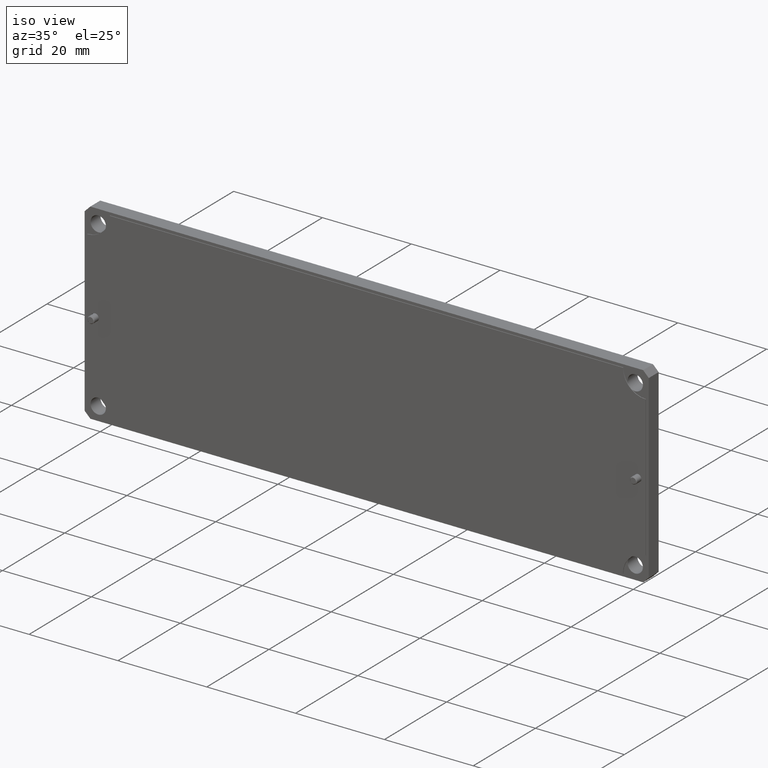
[diagram: clean part render]
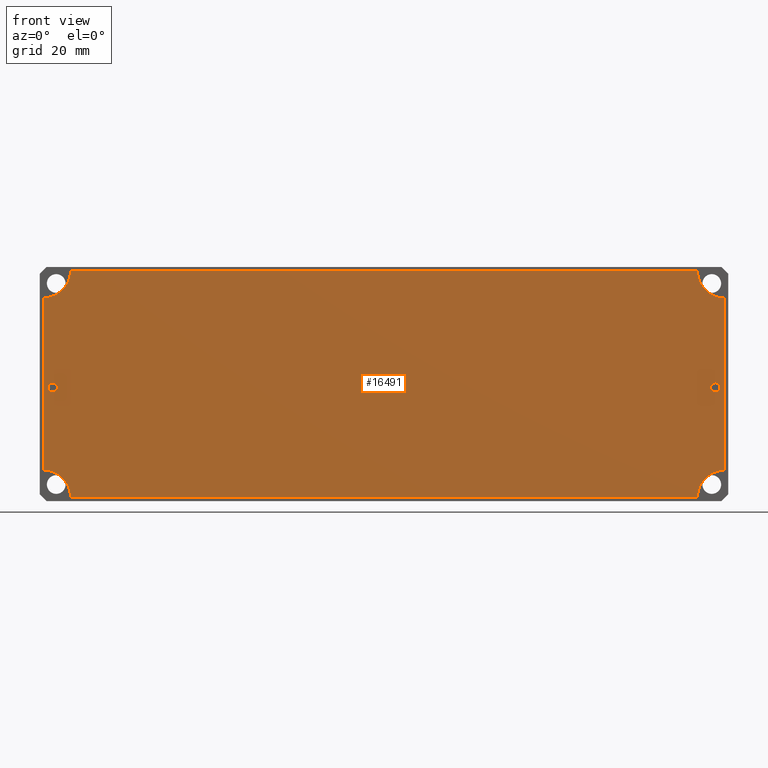
[diagram: tour spotlight — one face highlighted and labeled with its STEP entity id]
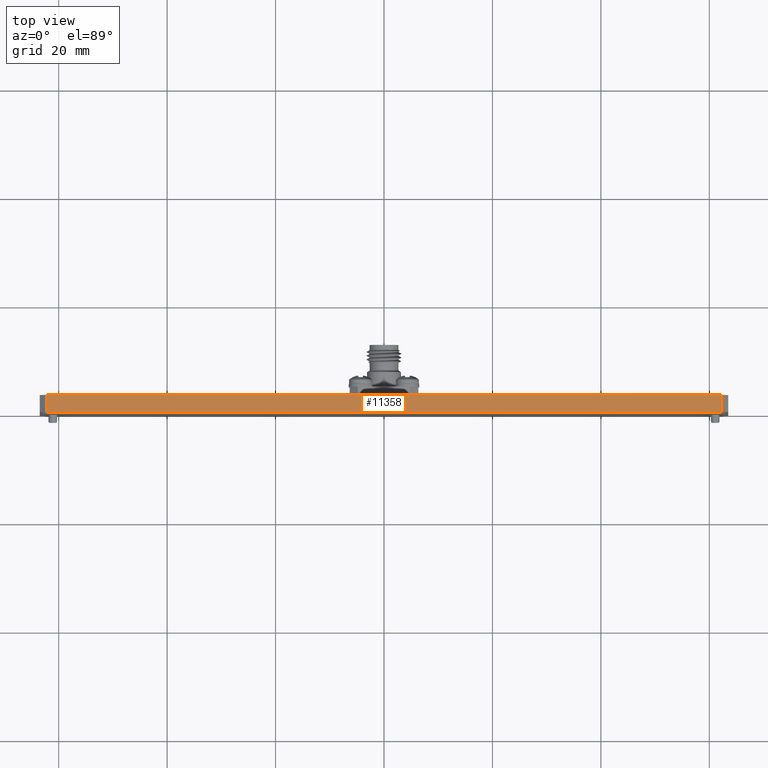
[diagram: tour spotlight — one face highlighted and labeled with its STEP entity id]
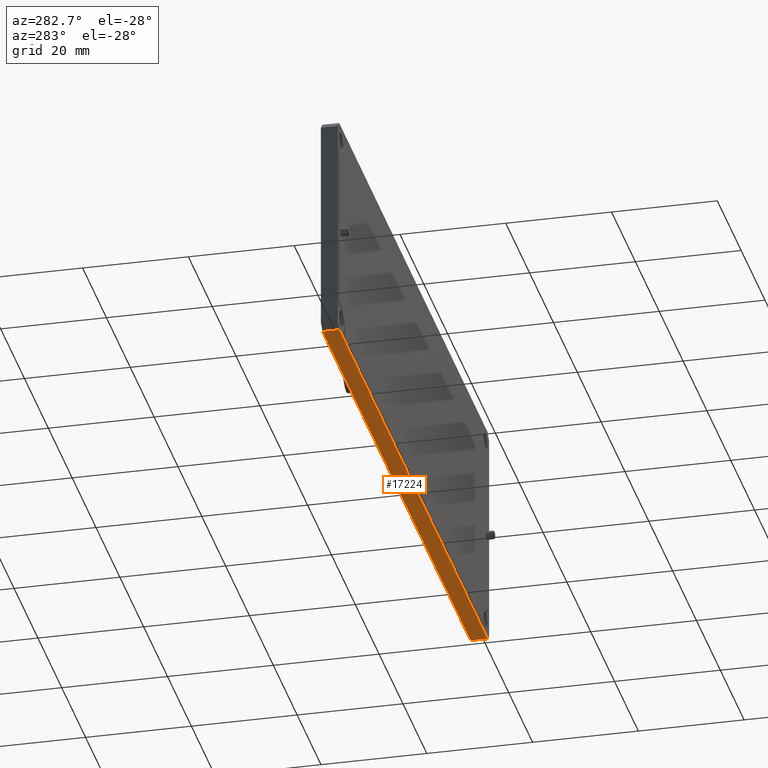
[diagram: tour spotlight — one face highlighted and labeled with its STEP entity id]
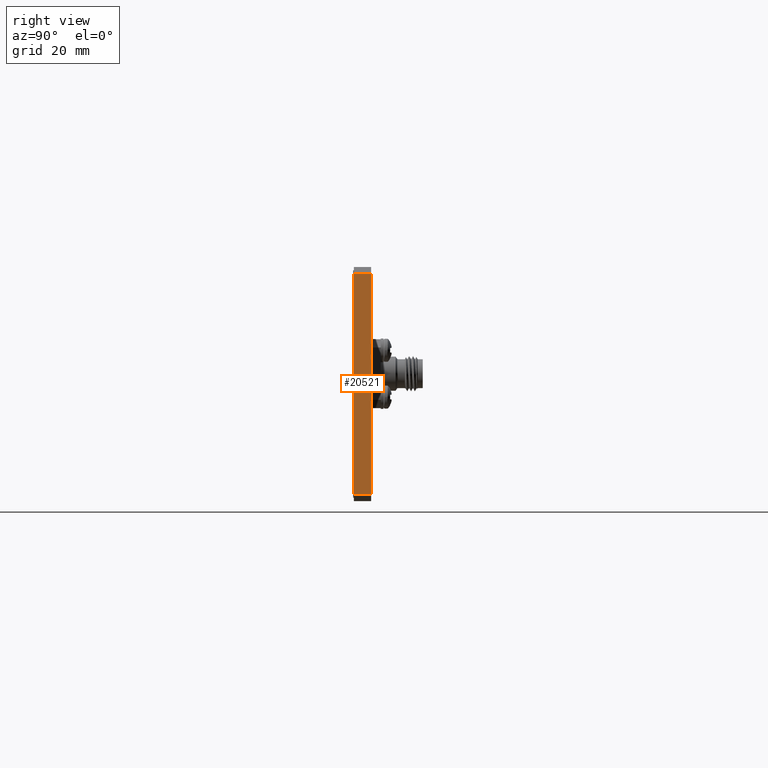
[diagram: tour spotlight — one face highlighted and labeled with its STEP entity id]
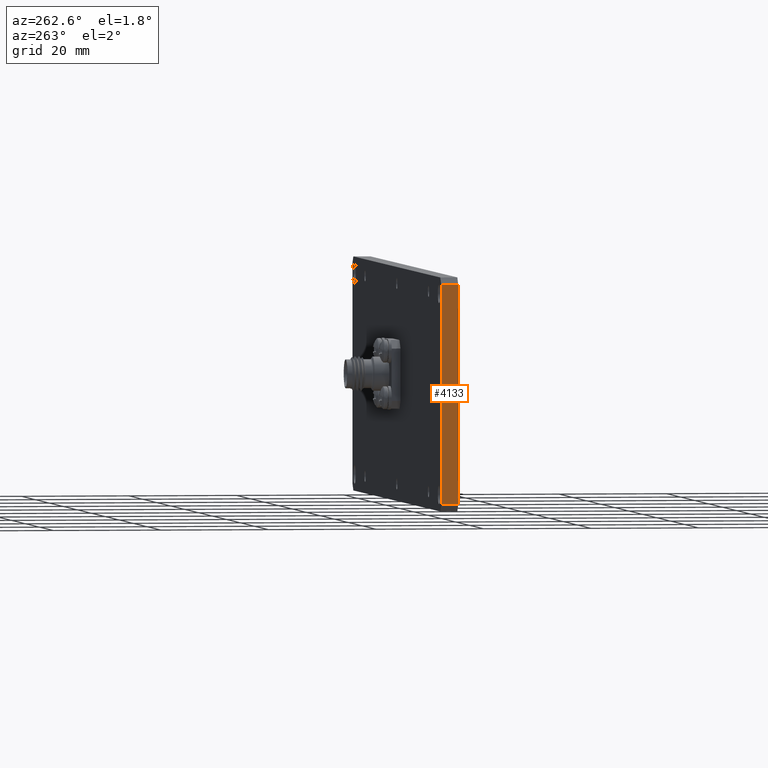
[diagram: tour spotlight — one face highlighted and labeled with its STEP entity id]
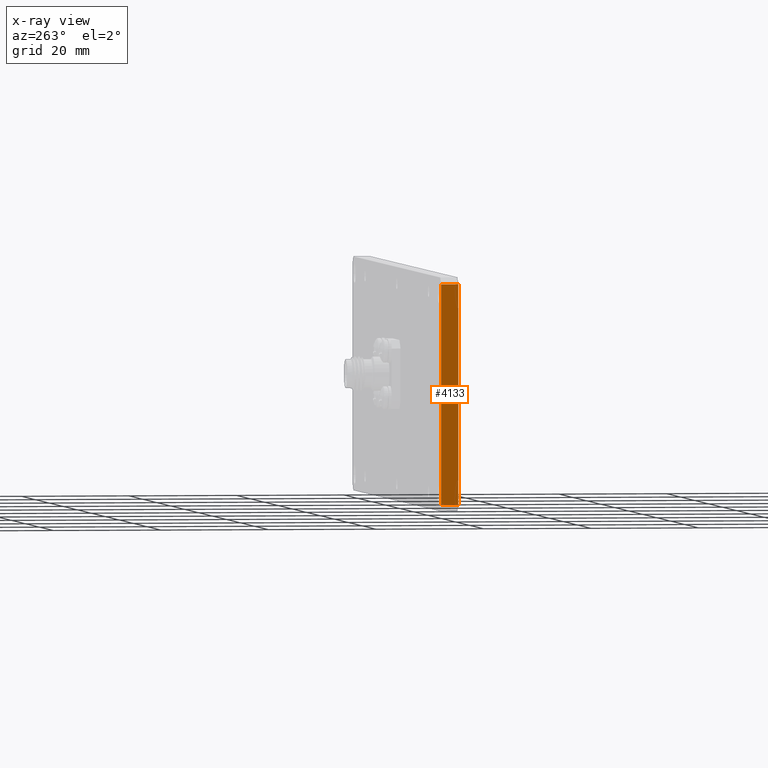
[diagram: x-ray of the same camera — body ghosted, this tour face saturated]
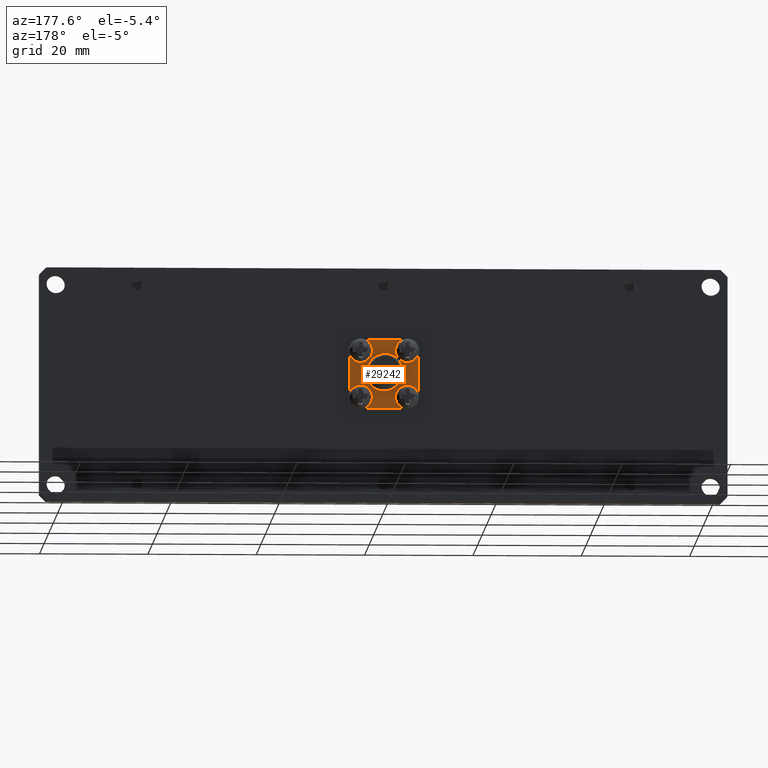
[diagram: tour spotlight — one face highlighted and labeled with its STEP entity id]
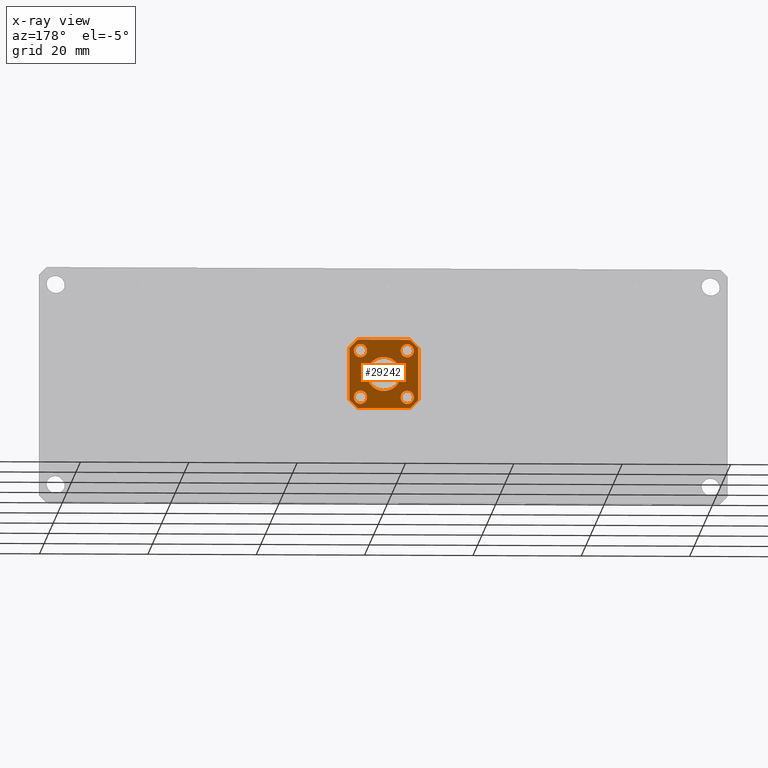
[diagram: x-ray of the same camera — body ghosted, this tour face saturated]
A machine part: a face-by-face anatomy tour. The part has 553 B-rep faces; the first image is the clean iso view, then the 6 largest visible faces are spotlighted one at a time (largest first), each with its STEP entity span.

Face 1 — front view, entity #16491. In plain terms, the highlighted planar face has unit normal (-0, -1, -0).
Definition (entity closure, byte-faithful):
#416 = DIRECTION ( 'NONE',  ( -5.551115123125781500E-017, 2.181494072981117600E-032, -1.000000000000000000 ) ) ;
#903 = CARTESIAN_POINT ( 'NONE',  ( -2.475000000000001900, -0.005000000000000000100, -0.8250000000000005100 ) ) ;
#950 = CARTESIAN_POINT ( 'NONE',  ( -2.275000000000000800, -0.005000000000000000100, 0.8250000000000010700 ) ) ;
#1314 = CARTESIAN_POINT ( 'NONE',  ( -2.475000000000001900, -0.005000000000000000100, 0.8250000000000001800 ) ) ;
#2229 = AXIS2_PLACEMENT_3D ( 'NONE', #12941, #7606, #30774 ) ;
#2478 = EDGE_CURVE ( 'NONE', #27634, #12762, #6495, .T. ) ;
#2840 = DIRECTION ( 'NONE',  ( 1.000000000000000000, -6.494532233333548000E-033, 5.486654548244976900E-017 ) ) ;
#3298 = VERTEX_POINT ( 'NONE', #18574 ) ;
#3766 = DIRECTION ( 'NONE',  ( -1.000000000000000000, 6.494532233333548000E-033, -5.486654548244976900E-017 ) ) ;
#4915 = DIRECTION ( 'NONE',  ( -6.494532233333543900E-033, -1.000000000000000000, -2.181494072981117600E-032 ) ) ;
#5185 = EDGE_CURVE ( 'NONE', #26575, #32260, #25729, .T. ) ;
#5250 = DIRECTION ( 'NONE',  ( 6.494532233333543900E-033, 1.000000000000000000, 2.181494072981117900E-032 ) ) ;
#5599 = VERTEX_POINT ( 'NONE', #10375 ) ;
#5677 = EDGE_CURVE ( 'NONE', #29269, #30675, #8181, .T. ) ;
#5780 = CARTESIAN_POINT ( 'NONE',  ( -2.475000000000001900, -0.005000000000000000100, 0.8250000000000001800 ) ) ;
#6017 = CARTESIAN_POINT ( 'NONE',  ( 2.474999999999999600, -0.005000000000000000100, 0.6250000000000004400 ) ) ;
#6044 = CARTESIAN_POINT ( 'NONE',  ( 2.474999999999999600, -0.005000000000000000100, -0.6250000000000006700 ) ) ;
#6338 = CARTESIAN_POINT ( 'NONE',  ( 2.405000000000000200, -0.005000000000000000100, -0.05849999999999958000 ) ) ;
#6410 = CIRCLE ( 'NONE', #17740, 0.1999999999999995100 ) ;
#6495 = LINE ( 'NONE', #29217, #28086 ) ;
#6673 = ORIENTED_EDGE ( 'NONE', *, *, #15263, .T. ) ;
#6912 = ORIENTED_EDGE ( 'NONE', *, *, #12157, .T. ) ;
#7174 = CARTESIAN_POINT ( 'NONE',  ( 2.405000000000000200, -0.005000000000000000100, -0.02499999999999959500 ) ) ;
#7551 = AXIS2_PLACEMENT_3D ( 'NONE', #903, #10907, #18788 ) ;
#7606 = DIRECTION ( 'NONE',  ( 6.494532233333543900E-033, 1.000000000000000000, 2.181494072981117900E-032 ) ) ;
#7611 = CARTESIAN_POINT ( 'NONE',  ( -2.405000000000000200, -0.005000000000000000100, 0.008500000000000635500 ) ) ;
#8060 = FACE_OUTER_BOUND ( 'NONE', #8143, .T. ) ;
#8143 = EDGE_LOOP ( 'NONE', ( #23303, #8920, #11649, #31302, #16087, #22947, #6912, #16821 ) ) ;
#8181 = LINE ( 'NONE', #5780, #12571 ) ;
#8234 = DIRECTION ( 'NONE',  ( 6.494532233333543900E-033, 1.000000000000000000, 2.181494072981117900E-032 ) ) ;
#8920 = ORIENTED_EDGE ( 'NONE', *, *, #2478, .T. ) ;
#8985 = AXIS2_PLACEMENT_3D ( 'NONE', #28720, #15688, #31062 ) ;
#9023 = AXIS2_PLACEMENT_3D ( 'NONE', #15094, #4915, #33231 ) ;
#9119 = DIRECTION ( 'NONE',  ( 5.551115123125781500E-017, -2.181494072981117600E-032, 1.000000000000000000 ) ) ;
#9720 = ORIENTED_EDGE ( 'NONE', *, *, #26864, .T. ) ;
#10039 = FACE_BOUND ( 'NONE', #30155, .T. ) ;
#10278 = CARTESIAN_POINT ( 'NONE',  ( 2.275000000000000400, -0.005000000000000000100, -0.8250000000000008400 ) ) ;
#10375 = CARTESIAN_POINT ( 'NONE',  ( 2.405000000000000200, -0.005000000000000000100, 0.008500000000000371800 ) ) ;
#10907 = DIRECTION ( 'NONE',  ( 6.494532233333543900E-033, 1.000000000000000000, 2.181494072981117900E-032 ) ) ;
#11649 = ORIENTED_EDGE ( 'NONE', *, *, #24650, .T. ) ;
#11711 = AXIS2_PLACEMENT_3D ( 'NONE', #28558, #23493, #23596 ) ;
#12045 = AXIS2_PLACEMENT_3D ( 'NONE', #28246, #25844, #18261 ) ;
#12157 = EDGE_CURVE ( 'NONE', #30675, #26575, #27506, .T. ) ;
#12571 = VECTOR ( 'NONE', #416, 39.37007874015748100 ) ;
#12623 = VERTEX_POINT ( 'NONE', #7611 ) ;
#12637 = DIRECTION ( 'NONE',  ( 0.0000000000000000000, 0.0000000000000000000, -1.000000000000000000 ) ) ;
#12762 = VERTEX_POINT ( 'NONE', #6017 ) ;
#12941 = CARTESIAN_POINT ( 'NONE',  ( -2.405000000000000200, -0.005000000000000000100, -0.02499999999999933200 ) ) ;
#13493 = VERTEX_POINT ( 'NONE', #14361 ) ;
#14361 = CARTESIAN_POINT ( 'NONE',  ( 2.274999999999999500, -0.005000000000000000100, 0.8250000000000006200 ) ) ;
#14531 = EDGE_CURVE ( 'NONE', #32260, #27634, #6410, .T. ) ;
#15072 = DIRECTION ( 'NONE',  ( 6.494532233333543900E-033, 1.000000000000000000, 2.181494072981117900E-032 ) ) ;
#15094 = CARTESIAN_POINT ( 'NONE',  ( -3.247266116666771900E-035, -0.005000000000000000100, -1.090747036490558900E-034 ) ) ;
#15263 = EDGE_CURVE ( 'NONE', #23101, #5599, #31896, .T. ) ;
#15308 = PLANE ( 'NONE',  #9023 ) ;
#15617 = CARTESIAN_POINT ( 'NONE',  ( -2.474999999999999600, -0.005000000000000000100, -0.6249999999999993300 ) ) ;
#15634 = CARTESIAN_POINT ( 'NONE',  ( -2.405000000000000200, -0.005000000000000000100, -0.02499999999999933200 ) ) ;
#15688 = DIRECTION ( 'NONE',  ( 6.494532233333543900E-033, 1.000000000000000000, 2.181494072981117900E-032 ) ) ;
#16087 = ORIENTED_EDGE ( 'NONE', *, *, #27512, .T. ) ;
#16424 = CIRCLE ( 'NONE', #27382, 0.03349999999999997400 ) ;
#16486 = CIRCLE ( 'NONE', #22480, 0.03349999999999998100 ) ;
#16491 = ADVANCED_FACE ( 'NONE', ( #8060, #18050, #10039 ), #15308, .T. ) ;
#16821 = ORIENTED_EDGE ( 'NONE', *, *, #5185, .T. ) ;
#17658 = DIRECTION ( 'NONE',  ( 0.0000000000000000000, 0.0000000000000000000, -1.000000000000000000 ) ) ;
#17740 = AXIS2_PLACEMENT_3D ( 'NONE', #29164, #8234, #31615 ) ;
#17781 = CIRCLE ( 'NONE', #2229, 0.03349999999999997400 ) ;
#17796 = VERTEX_POINT ( 'NONE', #950 ) ;
#18050 = FACE_BOUND ( 'NONE', #20547, .T. ) ;
#18261 = DIRECTION ( 'NONE',  ( 0.0000000000000000000, 0.0000000000000000000, 1.000000000000000000 ) ) ;
#18574 = CARTESIAN_POINT ( 'NONE',  ( -2.405000000000000200, -0.005000000000000000100, -0.05849999999999930300 ) ) ;
#18788 = DIRECTION ( 'NONE',  ( 0.0000000000000000000, 0.0000000000000000000, 1.000000000000000000 ) ) ;
#19714 = ORIENTED_EDGE ( 'NONE', *, *, #28696, .T. ) ;
#20547 = EDGE_LOOP ( 'NONE', ( #19714, #9720 ) ) ;
#22480 = AXIS2_PLACEMENT_3D ( 'NONE', #7174, #15072, #17658 ) ;
#22496 = VECTOR ( 'NONE', #3766, 39.37007874015748100 ) ;
#22947 = ORIENTED_EDGE ( 'NONE', *, *, #5677, .T. ) ;
#23101 = VERTEX_POINT ( 'NONE', #6338 ) ;
#23303 = ORIENTED_EDGE ( 'NONE', *, *, #14531, .T. ) ;
#23493 = DIRECTION ( 'NONE',  ( 6.494532233333543900E-033, 1.000000000000000000, 2.181494072981117900E-032 ) ) ;
#23596 = DIRECTION ( 'NONE',  ( 0.0000000000000000000, 0.0000000000000000000, -1.000000000000000000 ) ) ;
#24650 = EDGE_CURVE ( 'NONE', #12762, #13493, #31717, .T. ) ;
#24949 = VECTOR ( 'NONE', #2840, 39.37007874015748100 ) ;
#25729 = LINE ( 'NONE', #28377, #24949 ) ;
#25844 = DIRECTION ( 'NONE',  ( 6.494532233333543900E-033, 1.000000000000000000, 2.181494072981117900E-032 ) ) ;
#26575 = VERTEX_POINT ( 'NONE', #31282 ) ;
#26864 = EDGE_CURVE ( 'NONE', #12623, #3298, #17781, .T. ) ;
#27096 = EDGE_CURVE ( 'NONE', #13493, #17796, #29362, .T. ) ;
#27382 = AXIS2_PLACEMENT_3D ( 'NONE', #15634, #5250, #12637 ) ;
#27506 = CIRCLE ( 'NONE', #7551, 0.2000000000000011500 ) ;
#27512 = EDGE_CURVE ( 'NONE', #17796, #29269, #28957, .T. ) ;
#27634 = VERTEX_POINT ( 'NONE', #6044 ) ;
#28086 = VECTOR ( 'NONE', #9119, 39.37007874015748100 ) ;
#28246 = CARTESIAN_POINT ( 'NONE',  ( 2.474999999999999600, -0.005000000000000000100, 0.8250000000000005100 ) ) ;
#28377 = CARTESIAN_POINT ( 'NONE',  ( -2.475000000000001900, -0.005000000000000000100, -0.8249999999999999600 ) ) ;
#28496 = CARTESIAN_POINT ( 'NONE',  ( -2.474999999999999600, -0.005000000000000000100, 0.6250000000000006700 ) ) ;
#28558 = CARTESIAN_POINT ( 'NONE',  ( -2.475000000000001900, -0.005000000000000000100, 0.8250000000000007300 ) ) ;
#28696 = EDGE_CURVE ( 'NONE', #3298, #12623, #16424, .T. ) ;
#28720 = CARTESIAN_POINT ( 'NONE',  ( 2.405000000000000200, -0.005000000000000000100, -0.02499999999999959500 ) ) ;
#28957 = CIRCLE ( 'NONE', #11711, 0.2000000000000011500 ) ;
#29164 = CARTESIAN_POINT ( 'NONE',  ( 2.474999999999999600, -0.005000000000000000100, -0.8249999999999996200 ) ) ;
#29217 = CARTESIAN_POINT ( 'NONE',  ( 2.474999999999999600, -0.005000000000000000100, 0.8250000000000005100 ) ) ;
#29269 = VERTEX_POINT ( 'NONE', #28496 ) ;
#29362 = LINE ( 'NONE', #1314, #22496 ) ;
#30155 = EDGE_LOOP ( 'NONE', ( #6673, #33222 ) ) ;
#30617 = EDGE_CURVE ( 'NONE', #5599, #23101, #16486, .T. ) ;
#30675 = VERTEX_POINT ( 'NONE', #15617 ) ;
#30774 = DIRECTION ( 'NONE',  ( 0.0000000000000000000, 0.0000000000000000000, -1.000000000000000000 ) ) ;
#31062 = DIRECTION ( 'NONE',  ( 0.0000000000000000000, 0.0000000000000000000, -1.000000000000000000 ) ) ;
#31282 = CARTESIAN_POINT ( 'NONE',  ( -2.274999999999999500, -0.005000000000000000100, -0.8250000000000006200 ) ) ;
#31302 = ORIENTED_EDGE ( 'NONE', *, *, #27096, .T. ) ;
#31615 = DIRECTION ( 'NONE',  ( 0.0000000000000000000, 0.0000000000000000000, -1.000000000000000000 ) ) ;
#31717 = CIRCLE ( 'NONE', #12045, 0.2000000000000000400 ) ;
#31896 = CIRCLE ( 'NONE', #8985, 0.03349999999999998100 ) ;
#32260 = VERTEX_POINT ( 'NONE', #10278 ) ;
#33222 = ORIENTED_EDGE ( 'NONE', *, *, #30617, .T. ) ;
#33231 = DIRECTION ( 'NONE',  ( 5.551115123125781500E-017, -2.181494072981117600E-032, 1.000000000000000000 ) ) ;

Face 2 — top view, entity #11358. In plain terms, the highlighted planar face has unit normal (-0, 0, -1).
Definition (entity closure, byte-faithful):
#601 = CARTESIAN_POINT ( 'NONE',  ( -2.450000000000000200, 0.1250000000000000000, 0.8500000000000000900 ) ) ;
#812 = EDGE_CURVE ( 'NONE', #25346, #32474, #12779, .T. ) ;
#1067 = ORIENTED_EDGE ( 'NONE', *, *, #812, .F. ) ;
#1253 = CARTESIAN_POINT ( 'NONE',  ( 2.450000000000001100, 0.1250000000000000000, 0.8499999999999995300 ) ) ;
#1258 = VERTEX_POINT ( 'NONE', #32177 ) ;
#1319 = CARTESIAN_POINT ( 'NONE',  ( 2.450000000000001100, 0.1250000000000000000, 0.8499999999999995300 ) ) ;
#2152 = VERTEX_POINT ( 'NONE', #31867 ) ;
#2660 = CARTESIAN_POINT ( 'NONE',  ( -2.450000000000000200, 0.1250000000000000000, 0.8500000000000000900 ) ) ;
#2891 = DIRECTION ( 'NONE',  ( 1.000000000000000000, -0.0000000000000000000, -1.092739197465705300E-016 ) ) ;
#3939 = ORIENTED_EDGE ( 'NONE', *, *, #23904, .T. ) ;
#4147 = PLANE ( 'NONE',  #18018 ) ;
#5169 = VECTOR ( 'NONE', #11844, 39.37007874015748100 ) ;
#5959 = DIRECTION ( 'NONE',  ( 0.0000000000000000000, 1.000000000000000000, 0.0000000000000000000 ) ) ;
#6241 = VECTOR ( 'NONE', #2891, 39.37007874015748100 ) ;
#9519 = EDGE_CURVE ( 'NONE', #25346, #1258, #12319, .T. ) ;
#11358 = ADVANCED_FACE ( 'NONE', ( #19283 ), #4147, .F. ) ;
#11844 = DIRECTION ( 'NONE',  ( 1.000000000000000000, -0.0000000000000000000, -1.092739197465705300E-016 ) ) ;
#11984 = ORIENTED_EDGE ( 'NONE', *, *, #9519, .T. ) ;
#12319 = LINE ( 'NONE', #601, #27555 ) ;
#12416 = LINE ( 'NONE', #1253, #32057 ) ;
#12779 = LINE ( 'NONE', #32095, #5169 ) ;
#14754 = DIRECTION ( 'NONE',  ( -1.000000000000000000, 0.0000000000000000000, 1.092739197465705300E-016 ) ) ;
#16353 = DIRECTION ( 'NONE',  ( 0.0000000000000000000, -1.000000000000000000, 0.0000000000000000000 ) ) ;
#18018 = AXIS2_PLACEMENT_3D ( 'NONE', #32242, #27086, #14754 ) ;
#18232 = CARTESIAN_POINT ( 'NONE',  ( 2.500000000000000000, 0.0000000000000000000, 0.8499999999999995300 ) ) ;
#19283 = FACE_OUTER_BOUND ( 'NONE', #19728, .T. ) ;
#19728 = EDGE_LOOP ( 'NONE', ( #1067, #11984, #28119, #3939 ) ) ;
#22195 = EDGE_CURVE ( 'NONE', #1258, #2152, #25025, .T. ) ;
#23904 = EDGE_CURVE ( 'NONE', #2152, #32474, #12416, .T. ) ;
#25025 = LINE ( 'NONE', #18232, #6241 ) ;
#25346 = VERTEX_POINT ( 'NONE', #2660 ) ;
#27086 = DIRECTION ( 'NONE',  ( -1.092739197465705300E-016, 0.0000000000000000000, -1.000000000000000000 ) ) ;
#27555 = VECTOR ( 'NONE', #16353, 39.37007874015748100 ) ;
#28119 = ORIENTED_EDGE ( 'NONE', *, *, #22195, .T. ) ;
#31867 = CARTESIAN_POINT ( 'NONE',  ( 2.450000000000001100, 0.0000000000000000000, 0.8499999999999995300 ) ) ;
#32057 = VECTOR ( 'NONE', #5959, 39.37007874015748100 ) ;
#32095 = CARTESIAN_POINT ( 'NONE',  ( 2.500000000000000000, 0.1250000000000000000, 0.8499999999999995300 ) ) ;
#32177 = CARTESIAN_POINT ( 'NONE',  ( -2.450000000000000200, 0.0000000000000000000, 0.8500000000000000900 ) ) ;
#32242 = CARTESIAN_POINT ( 'NONE',  ( 2.500000000000000000, 0.1250000000000000000, 0.8499999999999995300 ) ) ;
#32474 = VERTEX_POINT ( 'NONE', #1319 ) ;

Face 3 — auxiliary view, entity #17224. In plain terms, the highlighted planar face has unit normal (0, -0, 1).
Definition (entity closure, byte-faithful):
#854 = VECTOR ( 'NONE', #9471, 39.37007874015748100 ) ;
#2396 = CARTESIAN_POINT ( 'NONE',  ( 2.500000000000000000, 0.0000000000000000000, -0.8500000000000003100 ) ) ;
#3044 = LINE ( 'NONE', #9072, #15036 ) ;
#3635 = DIRECTION ( 'NONE',  ( 1.092739197465705300E-016, -0.0000000000000000000, 1.000000000000000000 ) ) ;
#3857 = PLANE ( 'NONE',  #13553 ) ;
#6380 = EDGE_CURVE ( 'NONE', #16728, #16983, #27674, .T. ) ;
#7126 = CARTESIAN_POINT ( 'NONE',  ( 2.449999999999999700, 0.1250000000000000000, -0.8500000000000003100 ) ) ;
#8022 = DIRECTION ( 'NONE',  ( -1.000000000000000000, 0.0000000000000000000, 1.092739197465705300E-016 ) ) ;
#9007 = VERTEX_POINT ( 'NONE', #20538 ) ;
#9072 = CARTESIAN_POINT ( 'NONE',  ( -2.450000000000000200, 0.1250000000000000000, -0.8499999999999998700 ) ) ;
#9471 = DIRECTION ( 'NONE',  ( 0.0000000000000000000, -1.000000000000000000, 0.0000000000000000000 ) ) ;
#9775 = ORIENTED_EDGE ( 'NONE', *, *, #16127, .T. ) ;
#10121 = VECTOR ( 'NONE', #22873, 39.37007874015748100 ) ;
#10379 = EDGE_CURVE ( 'NONE', #9007, #25603, #3044, .T. ) ;
#11744 = CARTESIAN_POINT ( 'NONE',  ( -2.450000000000000200, 0.1250000000000000000, -0.8499999999999998700 ) ) ;
#12712 = CARTESIAN_POINT ( 'NONE',  ( 2.500000000000000000, 0.1250000000000000000, -0.8500000000000003100 ) ) ;
#13553 = AXIS2_PLACEMENT_3D ( 'NONE', #24109, #3635, #24451 ) ;
#15036 = VECTOR ( 'NONE', #24512, 39.37007874015748100 ) ;
#16127 = EDGE_CURVE ( 'NONE', #16983, #9007, #20081, .T. ) ;
#16418 = CARTESIAN_POINT ( 'NONE',  ( 2.449999999999999700, 0.1250000000000000000, -0.8500000000000003100 ) ) ;
#16728 = VERTEX_POINT ( 'NONE', #16418 ) ;
#16983 = VERTEX_POINT ( 'NONE', #20512 ) ;
#17224 = ADVANCED_FACE ( 'NONE', ( #21994 ), #3857, .F. ) ;
#18231 = ORIENTED_EDGE ( 'NONE', *, *, #19671, .F. ) ;
#19671 = EDGE_CURVE ( 'NONE', #16728, #25603, #23371, .T. ) ;
#20081 = LINE ( 'NONE', #2396, #10121 ) ;
#20512 = CARTESIAN_POINT ( 'NONE',  ( 2.449999999999999700, 0.0000000000000000000, -0.8500000000000003100 ) ) ;
#20538 = CARTESIAN_POINT ( 'NONE',  ( -2.450000000000000200, 0.0000000000000000000, -0.8499999999999998700 ) ) ;
#21994 = FACE_OUTER_BOUND ( 'NONE', #32024, .T. ) ;
#22873 = DIRECTION ( 'NONE',  ( -1.000000000000000000, 0.0000000000000000000, 1.092739197465705300E-016 ) ) ;
#22920 = ORIENTED_EDGE ( 'NONE', *, *, #10379, .T. ) ;
#23371 = LINE ( 'NONE', #12712, #30230 ) ;
#24109 = CARTESIAN_POINT ( 'NONE',  ( 2.500000000000000000, 0.1250000000000000000, -0.8500000000000003100 ) ) ;
#24451 = DIRECTION ( 'NONE',  ( 1.000000000000000000, 0.0000000000000000000, -1.092739197465705300E-016 ) ) ;
#24512 = DIRECTION ( 'NONE',  ( 0.0000000000000000000, 1.000000000000000000, 0.0000000000000000000 ) ) ;
#25603 = VERTEX_POINT ( 'NONE', #11744 ) ;
#27420 = ORIENTED_EDGE ( 'NONE', *, *, #6380, .T. ) ;
#27674 = LINE ( 'NONE', #7126, #854 ) ;
#30230 = VECTOR ( 'NONE', #8022, 39.37007874015748100 ) ;
#32024 = EDGE_LOOP ( 'NONE', ( #9775, #22920, #18231, #27420 ) ) ;

Face 4 — right view, entity #20521. In plain terms, the highlighted planar face has unit normal (-1, 0, 0).
Definition (entity closure, byte-faithful):
#1131 = DIRECTION ( 'NONE',  ( 0.0000000000000000000, 0.0000000000000000000, -1.000000000000000000 ) ) ;
#2501 = VECTOR ( 'NONE', #32734, 39.37007874015748100 ) ;
#2506 = VECTOR ( 'NONE', #1131, 39.37007874015748100 ) ;
#3246 = VERTEX_POINT ( 'NONE', #29497 ) ;
#4472 = EDGE_CURVE ( 'NONE', #22139, #14151, #32641, .T. ) ;
#4605 = VECTOR ( 'NONE', #7930, 39.37007874015748100 ) ;
#5139 = CARTESIAN_POINT ( 'NONE',  ( 2.500000000000000000, 0.1250000000000000000, 0.8000000000000003800 ) ) ;
#7930 = DIRECTION ( 'NONE',  ( 0.0000000000000000000, 0.0000000000000000000, -1.000000000000000000 ) ) ;
#9083 = LINE ( 'NONE', #21138, #20248 ) ;
#9401 = EDGE_LOOP ( 'NONE', ( #18585, #21390, #26655, #15708 ) ) ;
#9913 = CARTESIAN_POINT ( 'NONE',  ( 2.500000000000000000, 0.1250000000000000000, -0.8000000000000006000 ) ) ;
#9934 = EDGE_CURVE ( 'NONE', #22139, #3246, #9083, .T. ) ;
#10713 = CARTESIAN_POINT ( 'NONE',  ( 2.500000000000000000, 0.1250000000000000000, -0.8000000000000006000 ) ) ;
#12540 = FACE_OUTER_BOUND ( 'NONE', #9401, .T. ) ;
#12837 = CARTESIAN_POINT ( 'NONE',  ( 2.500000000000000000, 0.1250000000000000000, 0.8499999999999995300 ) ) ;
#14151 = VERTEX_POINT ( 'NONE', #10713 ) ;
#14567 = AXIS2_PLACEMENT_3D ( 'NONE', #31706, #21586, #19030 ) ;
#15708 = ORIENTED_EDGE ( 'NONE', *, *, #9934, .T. ) ;
#16093 = EDGE_CURVE ( 'NONE', #17749, #14151, #18907, .T. ) ;
#17749 = VERTEX_POINT ( 'NONE', #31288 ) ;
#18585 = ORIENTED_EDGE ( 'NONE', *, *, #20518, .T. ) ;
#18907 = LINE ( 'NONE', #9913, #2501 ) ;
#19030 = DIRECTION ( 'NONE',  ( 0.0000000000000000000, 0.0000000000000000000, 1.000000000000000000 ) ) ;
#20248 = VECTOR ( 'NONE', #28568, 39.37007874015748100 ) ;
#20518 = EDGE_CURVE ( 'NONE', #3246, #17749, #32969, .T. ) ;
#20521 = ADVANCED_FACE ( 'NONE', ( #12540 ), #29021, .F. ) ;
#21138 = CARTESIAN_POINT ( 'NONE',  ( 2.500000000000000000, 0.1250000000000000000, 0.8000000000000003800 ) ) ;
#21390 = ORIENTED_EDGE ( 'NONE', *, *, #16093, .T. ) ;
#21586 = DIRECTION ( 'NONE',  ( -1.000000000000000000, 0.0000000000000000000, 0.0000000000000000000 ) ) ;
#21694 = CARTESIAN_POINT ( 'NONE',  ( 2.500000000000000000, 0.0000000000000000000, 0.8499999999999995300 ) ) ;
#22139 = VERTEX_POINT ( 'NONE', #5139 ) ;
#26655 = ORIENTED_EDGE ( 'NONE', *, *, #4472, .F. ) ;
#28568 = DIRECTION ( 'NONE',  ( 0.0000000000000000000, -1.000000000000000000, 0.0000000000000000000 ) ) ;
#29021 = PLANE ( 'NONE',  #14567 ) ;
#29497 = CARTESIAN_POINT ( 'NONE',  ( 2.500000000000000000, 0.0000000000000000000, 0.8000000000000003800 ) ) ;
#31288 = CARTESIAN_POINT ( 'NONE',  ( 2.500000000000000000, 0.0000000000000000000, -0.8000000000000006000 ) ) ;
#31706 = CARTESIAN_POINT ( 'NONE',  ( 2.500000000000000000, 0.1250000000000000000, 0.8499999999999995300 ) ) ;
#32641 = LINE ( 'NONE', #12837, #4605 ) ;
#32734 = DIRECTION ( 'NONE',  ( 0.0000000000000000000, 1.000000000000000000, 0.0000000000000000000 ) ) ;
#32969 = LINE ( 'NONE', #21694, #2506 ) ;

Face 5 — auxiliary view, entity #4133. An x-ray twin of the same camera follows (body ghosted, this face saturated) — the face is partly hidden behind the body. In plain terms, the highlighted planar face has unit normal (1, -0, 0).
Definition (entity closure, byte-faithful):
#587 = EDGE_CURVE ( 'NONE', #1385, #23459, #22820, .T. ) ;
#1385 = VERTEX_POINT ( 'NONE', #32944 ) ;
#2422 = EDGE_CURVE ( 'NONE', #1385, #19821, #8893, .T. ) ;
#2859 = VECTOR ( 'NONE', #14488, 39.37007874015748100 ) ;
#2874 = DIRECTION ( 'NONE',  ( -0.0000000000000000000, -0.0000000000000000000, 1.000000000000000000 ) ) ;
#4133 = ADVANCED_FACE ( 'NONE', ( #23096 ), #5822, .F. ) ;
#5687 = CARTESIAN_POINT ( 'NONE',  ( -2.500000000000000000, 0.1250000000000000000, 0.8500000000000000900 ) ) ;
#5822 = PLANE ( 'NONE',  #8662 ) ;
#7677 = CARTESIAN_POINT ( 'NONE',  ( -2.500000000000000000, 0.0000000000000000000, 0.8000000000000003800 ) ) ;
#8662 = AXIS2_PLACEMENT_3D ( 'NONE', #21021, #26385, #21242 ) ;
#8893 = LINE ( 'NONE', #16761, #2859 ) ;
#9407 = VERTEX_POINT ( 'NONE', #7677 ) ;
#9821 = ORIENTED_EDGE ( 'NONE', *, *, #32143, .T. ) ;
#9845 = LINE ( 'NONE', #28304, #25033 ) ;
#10700 = EDGE_CURVE ( 'NONE', #19821, #9407, #21399, .T. ) ;
#10714 = CARTESIAN_POINT ( 'NONE',  ( -2.500000000000000000, 0.1250000000000000000, 0.8000000000000003800 ) ) ;
#10739 = EDGE_LOOP ( 'NONE', ( #16201, #29202, #23474, #9821 ) ) ;
#13282 = DIRECTION ( 'NONE',  ( 0.0000000000000000000, 1.000000000000000000, 0.0000000000000000000 ) ) ;
#14488 = DIRECTION ( 'NONE',  ( 0.0000000000000000000, -1.000000000000000000, -0.0000000000000000000 ) ) ;
#16070 = DIRECTION ( 'NONE',  ( -0.0000000000000000000, -0.0000000000000000000, 1.000000000000000000 ) ) ;
#16201 = ORIENTED_EDGE ( 'NONE', *, *, #587, .F. ) ;
#16761 = CARTESIAN_POINT ( 'NONE',  ( -2.500000000000000000, 0.1250000000000000000, -0.8000000000000000400 ) ) ;
#19821 = VERTEX_POINT ( 'NONE', #25771 ) ;
#20881 = CARTESIAN_POINT ( 'NONE',  ( -2.500000000000000000, 0.0000000000000000000, 0.8500000000000000900 ) ) ;
#21021 = CARTESIAN_POINT ( 'NONE',  ( -2.500000000000000000, 0.1250000000000000000, 0.8500000000000000900 ) ) ;
#21242 = DIRECTION ( 'NONE',  ( 0.0000000000000000000, 0.0000000000000000000, -1.000000000000000000 ) ) ;
#21399 = LINE ( 'NONE', #20881, #23821 ) ;
#22820 = LINE ( 'NONE', #5687, #24855 ) ;
#23096 = FACE_OUTER_BOUND ( 'NONE', #10739, .T. ) ;
#23459 = VERTEX_POINT ( 'NONE', #10714 ) ;
#23474 = ORIENTED_EDGE ( 'NONE', *, *, #10700, .T. ) ;
#23821 = VECTOR ( 'NONE', #16070, 39.37007874015748100 ) ;
#24855 = VECTOR ( 'NONE', #2874, 39.37007874015748100 ) ;
#25033 = VECTOR ( 'NONE', #13282, 39.37007874015748100 ) ;
#25771 = CARTESIAN_POINT ( 'NONE',  ( -2.500000000000000000, 0.0000000000000000000, -0.8000000000000000400 ) ) ;
#26385 = DIRECTION ( 'NONE',  ( 1.000000000000000000, -0.0000000000000000000, 0.0000000000000000000 ) ) ;
#28304 = CARTESIAN_POINT ( 'NONE',  ( -2.500000000000000000, 0.1250000000000000000, 0.8000000000000003800 ) ) ;
#29202 = ORIENTED_EDGE ( 'NONE', *, *, #2422, .T. ) ;
#32143 = EDGE_CURVE ( 'NONE', #9407, #23459, #9845, .T. ) ;
#32944 = CARTESIAN_POINT ( 'NONE',  ( -2.500000000000000000, 0.1250000000000000000, -0.8000000000000000400 ) ) ;

Face 6 — auxiliary view, entity #29242. An x-ray twin of the same camera follows (body ghosted, this face saturated) — the face is partly hidden behind the body. In plain terms, the highlighted planar face has unit normal (0, 1, 0).
Definition (entity closure, byte-faithful):
#36 = EDGE_CURVE ( 'NONE', #28810, #31046, #25306, .T. ) ;
#93 = DIRECTION ( 'NONE',  ( 0.0000000000000000000, 0.0000000000000000000, -1.000000000000000000 ) ) ;
#535 = DIRECTION ( 'NONE',  ( 0.0000000000000000000, 0.0000000000000000000, 1.000000000000000000 ) ) ;
#604 = EDGE_CURVE ( 'NONE', #17013, #9514, #18045, .T. ) ;
#685 = LINE ( 'NONE', #30948, #19102 ) ;
#938 = CARTESIAN_POINT ( 'NONE',  ( 0.2200000000000004500, 0.1949999999999999800, -0.1449999999999998200 ) ) ;
#1465 = VERTEX_POINT ( 'NONE', #12997 ) ;
#1771 = LINE ( 'NONE', #938, #24961 ) ;
#1811 = VECTOR ( 'NONE', #22796, 39.37007874015748100 ) ;
#2302 = CARTESIAN_POINT ( 'NONE',  ( -0.1699999999999999600, 0.1949999999999999800, -0.04700000000000034700 ) ) ;
#2915 = VERTEX_POINT ( 'NONE', #31752 ) ;
#3236 = EDGE_LOOP ( 'NONE', ( #8857, #4925, #23832, #22032, #29363, #12474, #6981, #9624 ) ) ;
#3335 = CARTESIAN_POINT ( 'NONE',  ( 0.1900000000000001100, 0.1949999999999999800, 0.3249999999999996800 ) ) ;
#3492 = FACE_BOUND ( 'NONE', #8543, .T. ) ;
#3532 = VECTOR ( 'NONE', #10480, 39.37007874015748100 ) ;
#3816 = EDGE_CURVE ( 'NONE', #11273, #26387, #32301, .T. ) ;
#4326 = EDGE_CURVE ( 'NONE', #9514, #17013, #28695, .T. ) ;
#4380 = CARTESIAN_POINT ( 'NONE',  ( -0.2199999999999995000, 0.1949999999999999800, -0.1450000000000006300 ) ) ;
#4442 = VERTEX_POINT ( 'NONE', #20194 ) ;
#4925 = ORIENTED_EDGE ( 'NONE', *, *, #36, .T. ) ;
#5396 = VECTOR ( 'NONE', #24430, 39.37007874015748100 ) ;
#5558 = ORIENTED_EDGE ( 'NONE', *, *, #32020, .F. ) ;
#5567 = DIRECTION ( 'NONE',  ( 0.0000000000000000000, 1.000000000000000000, 0.0000000000000000000 ) ) ;
#5728 = VERTEX_POINT ( 'NONE', #23668 ) ;
#5805 = CARTESIAN_POINT ( 'NONE',  ( 0.0000000000000000000, 0.1949999999999999800, 0.07499999999999960900 ) ) ;
#6059 = AXIS2_PLACEMENT_3D ( 'NONE', #5805, #8725, #13847 ) ;
#6253 = VERTEX_POINT ( 'NONE', #29402 ) ;
#6432 = DIRECTION ( 'NONE',  ( 0.0000000000000000000, 0.0000000000000000000, 1.000000000000000000 ) ) ;
#6755 = ORIENTED_EDGE ( 'NONE', *, *, #25428, .F. ) ;
#6823 = DIRECTION ( 'NONE',  ( 0.0000000000000000000, 1.000000000000000000, 0.0000000000000000000 ) ) ;
#6981 = ORIENTED_EDGE ( 'NONE', *, *, #12595, .T. ) ;
#7037 = AXIS2_PLACEMENT_3D ( 'NONE', #26353, #16182, #23800 ) ;
#7751 = ORIENTED_EDGE ( 'NONE', *, *, #4326, .F. ) ;
#7993 = EDGE_CURVE ( 'NONE', #5728, #4442, #10314, .T. ) ;
#8011 = CARTESIAN_POINT ( 'NONE',  ( 0.0000000000000000000, 0.1949999999999999800, 0.07499999999999960900 ) ) ;
#8105 = CARTESIAN_POINT ( 'NONE',  ( -0.1699999999999999600, 0.1949999999999999800, -0.1430000000000003500 ) ) ;
#8117 = EDGE_CURVE ( 'NONE', #29209, #11273, #685, .T. ) ;
#8322 = VERTEX_POINT ( 'NONE', #8769 ) ;
#8372 = CARTESIAN_POINT ( 'NONE',  ( 0.0000000000000000000, 0.1949999999999999800, 0.07499999999999960900 ) ) ;
#8543 = EDGE_LOOP ( 'NONE', ( #5558, #17222 ) ) ;
#8558 = DIRECTION ( 'NONE',  ( -0.7071067811865459100, 0.0000000000000000000, -0.7071067811865491300 ) ) ;
#8725 = DIRECTION ( 'NONE',  ( 0.0000000000000000000, 1.000000000000000000, 0.0000000000000000000 ) ) ;
#8769 = CARTESIAN_POINT ( 'NONE',  ( -0.1899999999999999500, 0.1949999999999999800, 0.3249999999999997300 ) ) ;
#8857 = ORIENTED_EDGE ( 'NONE', *, *, #29233, .T. ) ;
#9017 = AXIS2_PLACEMENT_3D ( 'NONE', #18101, #5567, #535 ) ;
#9439 = LINE ( 'NONE', #19484, #5396 ) ;
#9514 = VERTEX_POINT ( 'NONE', #18491 ) ;
#9624 = ORIENTED_EDGE ( 'NONE', *, *, #15561, .T. ) ;
#10314 = CIRCLE ( 'NONE', #13636, 0.04800000000000000800 ) ;
#10480 = DIRECTION ( 'NONE',  ( 1.000000000000000000, -0.0000000000000000000, -1.365923996832131600E-016 ) ) ;
#10829 = AXIS2_PLACEMENT_3D ( 'NONE', #20090, #30450, #22435 ) ;
#10877 = ORIENTED_EDGE ( 'NONE', *, *, #604, .F. ) ;
#11043 = CARTESIAN_POINT ( 'NONE',  ( 0.1700000000000000400, 0.1949999999999999800, 0.2449999999999996100 ) ) ;
#11107 = AXIS2_PLACEMENT_3D ( 'NONE', #11960, #25226, #30656 ) ;
#11173 = LINE ( 'NONE', #13134, #3532 ) ;
#11273 = VERTEX_POINT ( 'NONE', #16669 ) ;
#11337 = CARTESIAN_POINT ( 'NONE',  ( 0.2500000000000001100, 0.1949999999999999800, -0.1149999999999999400 ) ) ;
#11499 = DIRECTION ( 'NONE',  ( 0.0000000000000000000, 0.0000000000000000000, 1.000000000000000000 ) ) ;
#11548 = EDGE_CURVE ( 'NONE', #21729, #17571, #31290, .T. ) ;
#11960 = CARTESIAN_POINT ( 'NONE',  ( 0.1700000000000000400, 0.1949999999999999800, 0.2449999999999996100 ) ) ;
#12013 = EDGE_LOOP ( 'NONE', ( #32291, #24943 ) ) ;
#12159 = DIRECTION ( 'NONE',  ( 0.7071067811865486800, -0.0000000000000000000, -0.7071067811865462400 ) ) ;
#12290 = FACE_BOUND ( 'NONE', #12013, .T. ) ;
#12474 = ORIENTED_EDGE ( 'NONE', *, *, #3816, .T. ) ;
#12595 = EDGE_CURVE ( 'NONE', #26387, #15809, #21409, .T. ) ;
#12997 = CARTESIAN_POINT ( 'NONE',  ( 0.1700000000000000400, 0.1949999999999999800, 0.2929999999999996500 ) ) ;
#13134 = CARTESIAN_POINT ( 'NONE',  ( 0.2500000000000001100, 0.1949999999999999800, 0.3249999999999996800 ) ) ;
#13251 = CARTESIAN_POINT ( 'NONE',  ( 0.1900000000000000900, 0.1949999999999999800, -0.1750000000000003200 ) ) ;
#13405 = CIRCLE ( 'NONE', #21068, 0.1240000000000000000 ) ;
#13636 = AXIS2_PLACEMENT_3D ( 'NONE', #25527, #22639, #22753 ) ;
#13833 = DIRECTION ( 'NONE',  ( 0.0000000000000000000, 0.0000000000000000000, 1.000000000000000000 ) ) ;
#13847 = DIRECTION ( 'NONE',  ( 0.0000000000000000000, 0.0000000000000000000, 1.000000000000000000 ) ) ;
#15326 = CIRCLE ( 'NONE', #18349, 0.04800000000000004300 ) ;
#15561 = EDGE_CURVE ( 'NONE', #15809, #8322, #9439, .T. ) ;
#15809 = VERTEX_POINT ( 'NONE', #27885 ) ;
#16182 = DIRECTION ( 'NONE',  ( 0.0000000000000000000, 1.000000000000000000, 0.0000000000000000000 ) ) ;
#16639 = LINE ( 'NONE', #23347, #24261 ) ;
#16669 = CARTESIAN_POINT ( 'NONE',  ( -0.1899999999999997200, 0.1949999999999999800, -0.1750000000000002900 ) ) ;
#16748 = CARTESIAN_POINT ( 'NONE',  ( 0.2500000000000001100, 0.1949999999999999800, 0.2649999999999998500 ) ) ;
#17013 = VERTEX_POINT ( 'NONE', #28284 ) ;
#17222 = ORIENTED_EDGE ( 'NONE', *, *, #11548, .F. ) ;
#17454 = EDGE_CURVE ( 'NONE', #4442, #5728, #21160, .T. ) ;
#17571 = VERTEX_POINT ( 'NONE', #2302 ) ;
#17666 = CARTESIAN_POINT ( 'NONE',  ( -0.2499999999999998600, 0.1949999999999999800, 0.3249999999999997300 ) ) ;
#18045 = CIRCLE ( 'NONE', #7037, 0.04800000000000002200 ) ;
#18101 = CARTESIAN_POINT ( 'NONE',  ( -0.1699999999999999600, 0.1949999999999999800, -0.09500000000000034800 ) ) ;
#18338 = VERTEX_POINT ( 'NONE', #11337 ) ;
#18349 = AXIS2_PLACEMENT_3D ( 'NONE', #11043, #29045, #6432 ) ;
#18491 = CARTESIAN_POINT ( 'NONE',  ( 0.1700000000000000400, 0.1949999999999999800, -0.1430000000000004300 ) ) ;
#19102 = VECTOR ( 'NONE', #20487, 39.37007874015748100 ) ;
#19484 = CARTESIAN_POINT ( 'NONE',  ( -0.2200000000000002500, 0.1949999999999999800, 0.2949999999999993700 ) ) ;
#19578 = EDGE_CURVE ( 'NONE', #6253, #1465, #29028, .T. ) ;
#19862 = CARTESIAN_POINT ( 'NONE',  ( -0.1699999999999999600, 0.1949999999999999800, 0.2449999999999996300 ) ) ;
#20090 = CARTESIAN_POINT ( 'NONE',  ( 0.1700000000000000400, 0.1949999999999999800, -0.09500000000000041700 ) ) ;
#20194 = CARTESIAN_POINT ( 'NONE',  ( -0.1699999999999999600, 0.1949999999999999800, 0.2929999999999996500 ) ) ;
#20336 = CIRCLE ( 'NONE', #6059, 0.1240000000000000000 ) ;
#20487 = DIRECTION ( 'NONE',  ( -1.000000000000000000, 0.0000000000000000000, 1.365923996832131600E-016 ) ) ;
#21068 = AXIS2_PLACEMENT_3D ( 'NONE', #8372, #31537, #13833 ) ;
#21160 = CIRCLE ( 'NONE', #29230, 0.04800000000000000800 ) ;
#21409 = LINE ( 'NONE', #17666, #1811 ) ;
#21569 = CARTESIAN_POINT ( 'NONE',  ( 0.0000000000000000000, 0.1949999999999999800, -0.04900000000000038400 ) ) ;
#21729 = VERTEX_POINT ( 'NONE', #8105 ) ;
#21803 = AXIS2_PLACEMENT_3D ( 'NONE', #8011, #28379, #25873 ) ;
#21987 = CARTESIAN_POINT ( 'NONE',  ( 0.2199999999999997800, 0.1949999999999999800, 0.2950000000000001500 ) ) ;
#22032 = ORIENTED_EDGE ( 'NONE', *, *, #33034, .T. ) ;
#22239 = VECTOR ( 'NONE', #22719, 39.37007874015748900 ) ;
#22435 = DIRECTION ( 'NONE',  ( 0.0000000000000000000, 0.0000000000000000000, 1.000000000000000000 ) ) ;
#22639 = DIRECTION ( 'NONE',  ( 0.0000000000000000000, 1.000000000000000000, 0.0000000000000000000 ) ) ;
#22713 = FACE_BOUND ( 'NONE', #28420, .T. ) ;
#22719 = DIRECTION ( 'NONE',  ( -0.7071067811865486800, -0.0000000000000000000, 0.7071067811865462400 ) ) ;
#22753 = DIRECTION ( 'NONE',  ( 0.0000000000000000000, 0.0000000000000000000, 1.000000000000000000 ) ) ;
#22796 = DIRECTION ( 'NONE',  ( -0.0000000000000000000, -0.0000000000000000000, 1.000000000000000000 ) ) ;
#23097 = PLANE ( 'NONE',  #21803 ) ;
#23347 = CARTESIAN_POINT ( 'NONE',  ( 0.2500000000000001100, 0.1949999999999999800, 0.3249999999999996800 ) ) ;
#23668 = CARTESIAN_POINT ( 'NONE',  ( -0.1699999999999999600, 0.1949999999999999800, 0.1969999999999996200 ) ) ;
#23800 = DIRECTION ( 'NONE',  ( 0.0000000000000000000, 0.0000000000000000000, 1.000000000000000000 ) ) ;
#23832 = ORIENTED_EDGE ( 'NONE', *, *, #32163, .T. ) ;
#24261 = VECTOR ( 'NONE', #93, 39.37007874015748100 ) ;
#24430 = DIRECTION ( 'NONE',  ( 0.7071067811865466800, -0.0000000000000000000, 0.7071067811865483500 ) ) ;
#24705 = DIRECTION ( 'NONE',  ( 0.0000000000000000000, 0.0000000000000000000, 1.000000000000000000 ) ) ;
#24785 = CARTESIAN_POINT ( 'NONE',  ( -0.2499999999999998900, 0.1949999999999999800, -0.1150000000000003100 ) ) ;
#24943 = ORIENTED_EDGE ( 'NONE', *, *, #19578, .F. ) ;
#24961 = VECTOR ( 'NONE', #8558, 39.37007874015748100 ) ;
#25226 = DIRECTION ( 'NONE',  ( 0.0000000000000000000, 1.000000000000000000, 0.0000000000000000000 ) ) ;
#25306 = LINE ( 'NONE', #21987, #31353 ) ;
#25428 = EDGE_CURVE ( 'NONE', #2915, #30342, #20336, .T. ) ;
#25488 = FACE_BOUND ( 'NONE', #29218, .T. ) ;
#25527 = CARTESIAN_POINT ( 'NONE',  ( -0.1699999999999999600, 0.1949999999999999800, 0.2449999999999996300 ) ) ;
#25873 = DIRECTION ( 'NONE',  ( 0.0000000000000000000, -0.0000000000000000000, 1.000000000000000000 ) ) ;
#26353 = CARTESIAN_POINT ( 'NONE',  ( 0.1700000000000000400, 0.1949999999999999800, -0.09500000000000041700 ) ) ;
#26387 = VERTEX_POINT ( 'NONE', #24785 ) ;
#26814 = ORIENTED_EDGE ( 'NONE', *, *, #17454, .F. ) ;
#27444 = ORIENTED_EDGE ( 'NONE', *, *, #7993, .F. ) ;
#27885 = CARTESIAN_POINT ( 'NONE',  ( -0.2499999999999998600, 0.1949999999999999800, 0.2649999999999996800 ) ) ;
#28284 = CARTESIAN_POINT ( 'NONE',  ( 0.1700000000000000400, 0.1949999999999999800, -0.04700000000000039600 ) ) ;
#28379 = DIRECTION ( 'NONE',  ( 0.0000000000000000000, 1.000000000000000000, 0.0000000000000000000 ) ) ;
#28420 = EDGE_LOOP ( 'NONE', ( #26814, #27444 ) ) ;
#28522 = ORIENTED_EDGE ( 'NONE', *, *, #32258, .F. ) ;
#28603 = EDGE_LOOP ( 'NONE', ( #28522, #6755 ) ) ;
#28695 = CIRCLE ( 'NONE', #10829, 0.04800000000000002200 ) ;
#28810 = VERTEX_POINT ( 'NONE', #3335 ) ;
#29028 = CIRCLE ( 'NONE', #11107, 0.04800000000000004300 ) ;
#29045 = DIRECTION ( 'NONE',  ( 0.0000000000000000000, 1.000000000000000000, 0.0000000000000000000 ) ) ;
#29189 = DIRECTION ( 'NONE',  ( 0.0000000000000000000, 1.000000000000000000, 0.0000000000000000000 ) ) ;
#29209 = VERTEX_POINT ( 'NONE', #13251 ) ;
#29218 = EDGE_LOOP ( 'NONE', ( #10877, #7751 ) ) ;
#29230 = AXIS2_PLACEMENT_3D ( 'NONE', #19862, #6823, #24705 ) ;
#29233 = EDGE_CURVE ( 'NONE', #8322, #28810, #11173, .T. ) ;
#29242 = ADVANCED_FACE ( 'NONE', ( #29573, #22713, #3492, #25488, #12290, #29974 ), #23097, .T. ) ;
#29363 = ORIENTED_EDGE ( 'NONE', *, *, #8117, .T. ) ;
#29402 = CARTESIAN_POINT ( 'NONE',  ( 0.1700000000000000400, 0.1949999999999999800, 0.1969999999999995600 ) ) ;
#29573 = FACE_OUTER_BOUND ( 'NONE', #3236, .T. ) ;
#29645 = CARTESIAN_POINT ( 'NONE',  ( -0.1699999999999999600, 0.1949999999999999800, -0.09500000000000034800 ) ) ;
#29974 = FACE_BOUND ( 'NONE', #28603, .T. ) ;
#30342 = VERTEX_POINT ( 'NONE', #21569 ) ;
#30450 = DIRECTION ( 'NONE',  ( 0.0000000000000000000, 1.000000000000000000, 0.0000000000000000000 ) ) ;
#30656 = DIRECTION ( 'NONE',  ( 0.0000000000000000000, 0.0000000000000000000, 1.000000000000000000 ) ) ;
#30698 = CIRCLE ( 'NONE', #32237, 0.04800000000000000800 ) ;
#30948 = CARTESIAN_POINT ( 'NONE',  ( 0.2500000000000001100, 0.1949999999999999800, -0.1750000000000003200 ) ) ;
#31046 = VERTEX_POINT ( 'NONE', #16748 ) ;
#31290 = CIRCLE ( 'NONE', #9017, 0.04800000000000000800 ) ;
#31353 = VECTOR ( 'NONE', #12159, 39.37007874015748900 ) ;
#31537 = DIRECTION ( 'NONE',  ( 0.0000000000000000000, 1.000000000000000000, 0.0000000000000000000 ) ) ;
#31752 = CARTESIAN_POINT ( 'NONE',  ( 1.518562030942717400E-017, 0.1949999999999999800, 0.1989999999999995900 ) ) ;
#32020 = EDGE_CURVE ( 'NONE', #17571, #21729, #30698, .T. ) ;
#32163 = EDGE_CURVE ( 'NONE', #31046, #18338, #16639, .T. ) ;
#32237 = AXIS2_PLACEMENT_3D ( 'NONE', #29645, #29189, #11499 ) ;
#32258 = EDGE_CURVE ( 'NONE', #30342, #2915, #13405, .T. ) ;
#32291 = ORIENTED_EDGE ( 'NONE', *, *, #33092, .F. ) ;
#32301 = LINE ( 'NONE', #4380, #22239 ) ;
#33034 = EDGE_CURVE ( 'NONE', #18338, #29209, #1771, .T. ) ;
#33092 = EDGE_CURVE ( 'NONE', #1465, #6253, #15326, .T. ) ;